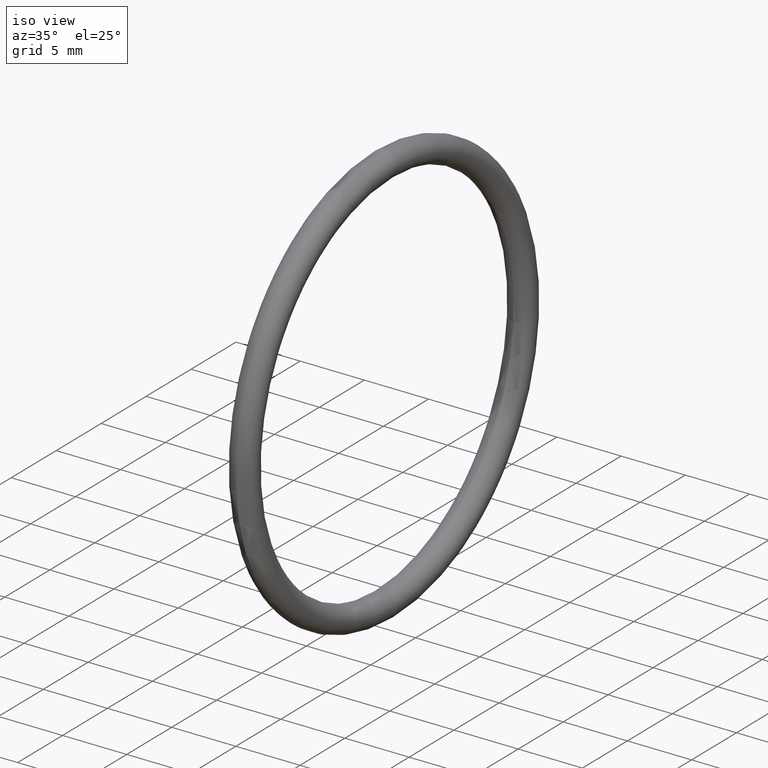
[diagram: clean part render]
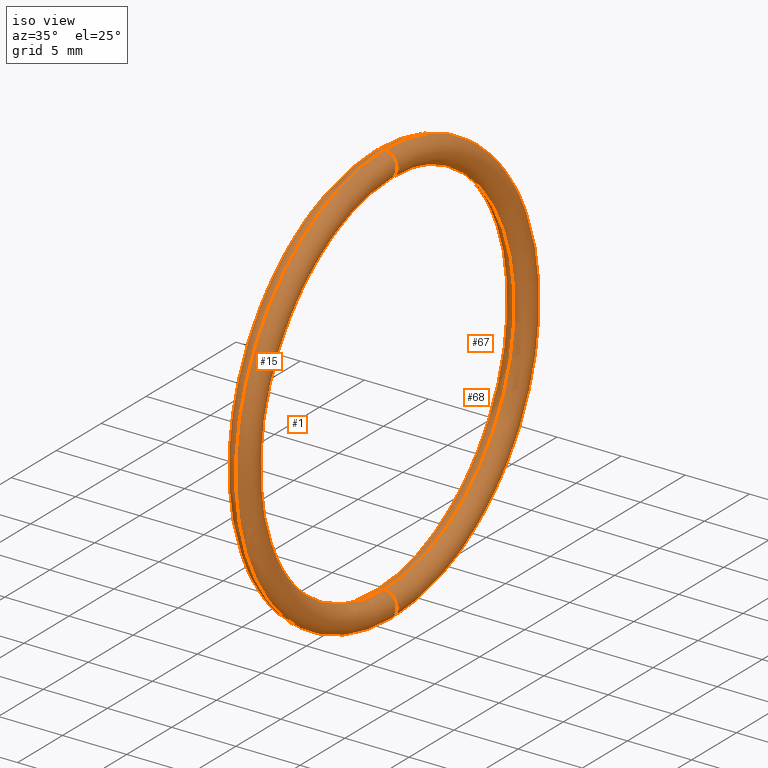
[diagram: same view with one multi-face feature highlighted, each face labeled with its STEP entity id]
A machine part, iso view. The highlighted faces form ONE feature: a constant-radius fillet chain: 4 tangent blend faces with common blend radius 1.016 mm. The faces share edges in the B-rep.
Their STEP definitions:
[1] entity #67 (Torus):
#3 = EDGE_CURVE ( 'NONE', #14, #8, #20, .T. ) ;
#8 = VERTEX_POINT ( 'NONE', #84 ) ;
#10 = VERTEX_POINT ( 'NONE', #96 ) ;
#14 = VERTEX_POINT ( 'NONE', #86 ) ;
#16 = AXIS2_PLACEMENT_3D ( 'NONE', #21, #22, #19 ) ;
#17 = DIRECTION ( 'NONE',  ( -1.000000000000000000, -0.0000000000000000000, -0.0000000000000000000 ) ) ;
#18 = CIRCLE ( 'NONE', #29, 0.6499999999999999100 ) ;
#19 = DIRECTION ( 'NONE',  ( 0.0000000000000000000, -1.224646799147354900E-016, 1.000000000000000000 ) ) ;
#20 = CIRCLE ( 'NONE', #16, 0.03999999999999998000 ) ;
#21 = CARTESIAN_POINT ( 'NONE',  ( 0.1000000000000000700, 7.470345474798854000E-017, -0.6099999999999998800 ) ) ;
#22 = DIRECTION ( 'NONE',  ( -0.0000000000000000000, 1.000000000000000000, 1.224646799147353200E-016 ) ) ;
#27 = CARTESIAN_POINT ( 'NONE',  ( 0.1000000000000000700, 0.0000000000000000000, 0.0000000000000000000 ) ) ;
#29 = AXIS2_PLACEMENT_3D ( 'NONE', #27, #17, #32 ) ;
#31 = DIRECTION ( 'NONE',  ( -1.000000000000000000, -0.0000000000000000000, -0.0000000000000000000 ) ) ;
#32 = DIRECTION ( 'NONE',  ( 0.0000000000000000000, 0.0000000000000000000, 1.000000000000000000 ) ) ;
#33 = DIRECTION ( 'NONE',  ( 0.0000000000000000000, 0.0000000000000000000, 1.000000000000000000 ) ) ;
#34 = DIRECTION ( 'NONE',  ( -1.000000000000000000, -0.0000000000000000000, -0.0000000000000000000 ) ) ;
#49 = DIRECTION ( 'NONE',  ( 0.0000000000000000000, 0.0000000000000000000, 1.000000000000000000 ) ) ;
#52 = VERTEX_POINT ( 'NONE', #91 ) ;
#54 = EDGE_CURVE ( 'NONE', #10, #8, #18, .T. ) ;
#56 = EDGE_LOOP ( 'NONE', ( #64, #58, #66, #60 ) ) ;
#58 = ORIENTED_EDGE ( 'NONE', *, *, #59, .F. ) ;
#59 = EDGE_CURVE ( 'NONE', #52, #10, #115, .T. ) ;
#60 = ORIENTED_EDGE ( 'NONE', *, *, #3, .T. ) ;
#63 = EDGE_CURVE ( 'NONE', #52, #14, #110, .T. ) ;
#64 = ORIENTED_EDGE ( 'NONE', *, *, #54, .F. ) ;
#66 = ORIENTED_EDGE ( 'NONE', *, *, #63, .T. ) ;
#67 = ADVANCED_FACE ( 'NONE', ( #118 ), #117, .T. ) ;
#84 = CARTESIAN_POINT ( 'NONE',  ( 0.1000000000000000700, 7.960204194457794200E-017, -0.6499999999999999100 ) ) ;
#86 = CARTESIAN_POINT ( 'NONE',  ( 0.1000000000000000700, 6.980486755139912600E-017, -0.5699999999999999500 ) ) ;
#91 = CARTESIAN_POINT ( 'NONE',  ( 0.1000000000000000700, 0.0000000000000000000, 0.5699999999999999500 ) ) ;
#96 = CARTESIAN_POINT ( 'NONE',  ( 0.1000000000000000700, 0.0000000000000000000, 0.6499999999999999100 ) ) ;
#108 = CARTESIAN_POINT ( 'NONE',  ( 0.1000000000000000700, 0.0000000000000000000, 0.0000000000000000000 ) ) ;
#109 = AXIS2_PLACEMENT_3D ( 'NONE', #108, #31, #33 ) ;
#110 = CIRCLE ( 'NONE', #109, 0.5699999999999999500 ) ;
#111 = DIRECTION ( 'NONE',  ( 0.0000000000000000000, 0.0000000000000000000, -1.000000000000000000 ) ) ;
#112 = DIRECTION ( 'NONE',  ( 0.0000000000000000000, -1.000000000000000000, 0.0000000000000000000 ) ) ;
#113 = CARTESIAN_POINT ( 'NONE',  ( 0.1000000000000000700, 0.0000000000000000000, 0.6099999999999998800 ) ) ;
#114 = AXIS2_PLACEMENT_3D ( 'NONE', #113, #112, #111 ) ;
#115 = CIRCLE ( 'NONE', #114, 0.03999999999999998000 ) ;
#116 = AXIS2_PLACEMENT_3D ( 'NONE', #124, #34, #49 ) ;
#117 = TOROIDAL_SURFACE ( 'NONE', #116, 0.6099999999999998800, 0.04000000000000000100 ) ;
#118 = FACE_OUTER_BOUND ( 'NONE', #56, .T. ) ;
#124 = CARTESIAN_POINT ( 'NONE',  ( 0.1000000000000000700, 0.0000000000000000000, 0.0000000000000000000 ) ) ;
[2] entity #1 (Torus):
#1 = ADVANCED_FACE ( 'NONE', ( #78 ), #83, .T. ) ;
#2 = ORIENTED_EDGE ( 'NONE', *, *, #59, .T. ) ;
#3 = EDGE_CURVE ( 'NONE', #14, #8, #20, .T. ) ;
#4 = ORIENTED_EDGE ( 'NONE', *, *, #65, .T. ) ;
#5 = ORIENTED_EDGE ( 'NONE', *, *, #9, .F. ) ;
#8 = VERTEX_POINT ( 'NONE', #84 ) ;
#9 = EDGE_CURVE ( 'NONE', #8, #10, #28, .T. ) ;
#10 = VERTEX_POINT ( 'NONE', #96 ) ;
#14 = VERTEX_POINT ( 'NONE', #86 ) ;
#16 = AXIS2_PLACEMENT_3D ( 'NONE', #21, #22, #19 ) ;
#19 = DIRECTION ( 'NONE',  ( 0.0000000000000000000, -1.224646799147354900E-016, 1.000000000000000000 ) ) ;
#20 = CIRCLE ( 'NONE', #16, 0.03999999999999998000 ) ;
#21 = CARTESIAN_POINT ( 'NONE',  ( 0.1000000000000000700, 7.470345474798854000E-017, -0.6099999999999998800 ) ) ;
#22 = DIRECTION ( 'NONE',  ( -0.0000000000000000000, 1.000000000000000000, 1.224646799147353200E-016 ) ) ;
#24 = AXIS2_PLACEMENT_3D ( 'NONE', #26, #25, #30 ) ;
#25 = DIRECTION ( 'NONE',  ( -1.000000000000000000, -0.0000000000000000000, -0.0000000000000000000 ) ) ;
#26 = CARTESIAN_POINT ( 'NONE',  ( 0.1000000000000000700, 0.0000000000000000000, 0.0000000000000000000 ) ) ;
#28 = CIRCLE ( 'NONE', #24, 0.6499999999999999100 ) ;
#30 = DIRECTION ( 'NONE',  ( 0.0000000000000000000, 0.0000000000000000000, 1.000000000000000000 ) ) ;
#52 = VERTEX_POINT ( 'NONE', #91 ) ;
#59 = EDGE_CURVE ( 'NONE', #52, #10, #115, .T. ) ;
#61 = EDGE_LOOP ( 'NONE', ( #5, #72, #4, #2 ) ) ;
#65 = EDGE_CURVE ( 'NONE', #14, #52, #123, .T. ) ;
#72 = ORIENTED_EDGE ( 'NONE', *, *, #3, .F. ) ;
#78 = FACE_OUTER_BOUND ( 'NONE', #61, .T. ) ;
#79 = DIRECTION ( 'NONE',  ( -1.000000000000000000, -0.0000000000000000000, -0.0000000000000000000 ) ) ;
#80 = DIRECTION ( 'NONE',  ( 0.0000000000000000000, 0.0000000000000000000, 1.000000000000000000 ) ) ;
#81 = CARTESIAN_POINT ( 'NONE',  ( 0.1000000000000000700, 0.0000000000000000000, 0.0000000000000000000 ) ) ;
#82 = AXIS2_PLACEMENT_3D ( 'NONE', #81, #79, #80 ) ;
#83 = TOROIDAL_SURFACE ( 'NONE', #82, 0.6099999999999998800, 0.04000000000000000100 ) ;
#84 = CARTESIAN_POINT ( 'NONE',  ( 0.1000000000000000700, 7.960204194457794200E-017, -0.6499999999999999100 ) ) ;
#86 = CARTESIAN_POINT ( 'NONE',  ( 0.1000000000000000700, 6.980486755139912600E-017, -0.5699999999999999500 ) ) ;
#91 = CARTESIAN_POINT ( 'NONE',  ( 0.1000000000000000700, 0.0000000000000000000, 0.5699999999999999500 ) ) ;
#96 = CARTESIAN_POINT ( 'NONE',  ( 0.1000000000000000700, 0.0000000000000000000, 0.6499999999999999100 ) ) ;
#111 = DIRECTION ( 'NONE',  ( 0.0000000000000000000, 0.0000000000000000000, -1.000000000000000000 ) ) ;
#112 = DIRECTION ( 'NONE',  ( 0.0000000000000000000, -1.000000000000000000, 0.0000000000000000000 ) ) ;
#113 = CARTESIAN_POINT ( 'NONE',  ( 0.1000000000000000700, 0.0000000000000000000, 0.6099999999999998800 ) ) ;
#114 = AXIS2_PLACEMENT_3D ( 'NONE', #113, #112, #111 ) ;
#115 = CIRCLE ( 'NONE', #114, 0.03999999999999998000 ) ;
#119 = DIRECTION ( 'NONE',  ( 0.0000000000000000000, 0.0000000000000000000, 1.000000000000000000 ) ) ;
#120 = DIRECTION ( 'NONE',  ( -1.000000000000000000, -0.0000000000000000000, -0.0000000000000000000 ) ) ;
#121 = CARTESIAN_POINT ( 'NONE',  ( 0.1000000000000000700, 0.0000000000000000000, 0.0000000000000000000 ) ) ;
#122 = AXIS2_PLACEMENT_3D ( 'NONE', #121, #120, #119 ) ;
#123 = CIRCLE ( 'NONE', #122, 0.5699999999999999500 ) ;
[3] entity #15 (Torus):
#7 = ORIENTED_EDGE ( 'NONE', *, *, #9, .T. ) ;
#8 = VERTEX_POINT ( 'NONE', #84 ) ;
#9 = EDGE_CURVE ( 'NONE', #8, #10, #28, .T. ) ;
#10 = VERTEX_POINT ( 'NONE', #96 ) ;
#11 = EDGE_LOOP ( 'NONE', ( #13, #7, #51, #71 ) ) ;
#12 = EDGE_CURVE ( 'NONE', #8, #14, #88, .T. ) ;
#13 = ORIENTED_EDGE ( 'NONE', *, *, #12, .F. ) ;
#14 = VERTEX_POINT ( 'NONE', #86 ) ;
#15 = ADVANCED_FACE ( 'NONE', ( #85 ), #92, .T. ) ;
#24 = AXIS2_PLACEMENT_3D ( 'NONE', #26, #25, #30 ) ;
#25 = DIRECTION ( 'NONE',  ( -1.000000000000000000, -0.0000000000000000000, -0.0000000000000000000 ) ) ;
#26 = CARTESIAN_POINT ( 'NONE',  ( 0.1000000000000000700, 0.0000000000000000000, 0.0000000000000000000 ) ) ;
#28 = CIRCLE ( 'NONE', #24, 0.6499999999999999100 ) ;
#30 = DIRECTION ( 'NONE',  ( 0.0000000000000000000, 0.0000000000000000000, 1.000000000000000000 ) ) ;
#51 = ORIENTED_EDGE ( 'NONE', *, *, #53, .T. ) ;
#52 = VERTEX_POINT ( 'NONE', #91 ) ;
#53 = EDGE_CURVE ( 'NONE', #10, #52, #103, .T. ) ;
#65 = EDGE_CURVE ( 'NONE', #14, #52, #123, .T. ) ;
#71 = ORIENTED_EDGE ( 'NONE', *, *, #65, .F. ) ;
#84 = CARTESIAN_POINT ( 'NONE',  ( 0.1000000000000000700, 7.960204194457794200E-017, -0.6499999999999999100 ) ) ;
#85 = FACE_OUTER_BOUND ( 'NONE', #11, .T. ) ;
#86 = CARTESIAN_POINT ( 'NONE',  ( 0.1000000000000000700, 6.980486755139912600E-017, -0.5699999999999999500 ) ) ;
#87 = AXIS2_PLACEMENT_3D ( 'NONE', #89, #94, #93 ) ;
#88 = CIRCLE ( 'NONE', #87, 0.03999999999999998000 ) ;
#89 = CARTESIAN_POINT ( 'NONE',  ( 0.1000000000000000700, 7.470345474798854000E-017, -0.6099999999999998800 ) ) ;
#90 = AXIS2_PLACEMENT_3D ( 'NONE', #95, #99, #98 ) ;
#91 = CARTESIAN_POINT ( 'NONE',  ( 0.1000000000000000700, 0.0000000000000000000, 0.5699999999999999500 ) ) ;
#92 = TOROIDAL_SURFACE ( 'NONE', #90, 0.6099999999999998800, 0.04000000000000000100 ) ;
#93 = DIRECTION ( 'NONE',  ( 0.0000000000000000000, -1.224646799147354900E-016, 1.000000000000000000 ) ) ;
#94 = DIRECTION ( 'NONE',  ( -0.0000000000000000000, 1.000000000000000000, 1.224646799147353200E-016 ) ) ;
#95 = CARTESIAN_POINT ( 'NONE',  ( 0.1000000000000000700, 0.0000000000000000000, 0.0000000000000000000 ) ) ;
#96 = CARTESIAN_POINT ( 'NONE',  ( 0.1000000000000000700, 0.0000000000000000000, 0.6499999999999999100 ) ) ;
#97 = CARTESIAN_POINT ( 'NONE',  ( 0.1000000000000000700, 0.0000000000000000000, 0.6099999999999998800 ) ) ;
#98 = DIRECTION ( 'NONE',  ( 0.0000000000000000000, 0.0000000000000000000, 1.000000000000000000 ) ) ;
#99 = DIRECTION ( 'NONE',  ( -1.000000000000000000, -0.0000000000000000000, -0.0000000000000000000 ) ) ;
#100 = DIRECTION ( 'NONE',  ( 0.0000000000000000000, 0.0000000000000000000, -1.000000000000000000 ) ) ;
#101 = DIRECTION ( 'NONE',  ( 0.0000000000000000000, -1.000000000000000000, 0.0000000000000000000 ) ) ;
#102 = AXIS2_PLACEMENT_3D ( 'NONE', #97, #101, #100 ) ;
#103 = CIRCLE ( 'NONE', #102, 0.03999999999999998000 ) ;
#119 = DIRECTION ( 'NONE',  ( 0.0000000000000000000, 0.0000000000000000000, 1.000000000000000000 ) ) ;
#120 = DIRECTION ( 'NONE',  ( -1.000000000000000000, -0.0000000000000000000, -0.0000000000000000000 ) ) ;
#121 = CARTESIAN_POINT ( 'NONE',  ( 0.1000000000000000700, 0.0000000000000000000, 0.0000000000000000000 ) ) ;
#122 = AXIS2_PLACEMENT_3D ( 'NONE', #121, #120, #119 ) ;
#123 = CIRCLE ( 'NONE', #122, 0.5699999999999999500 ) ;
[4] entity #68 (Torus):
#8 = VERTEX_POINT ( 'NONE', #84 ) ;
#10 = VERTEX_POINT ( 'NONE', #96 ) ;
#12 = EDGE_CURVE ( 'NONE', #8, #14, #88, .T. ) ;
#14 = VERTEX_POINT ( 'NONE', #86 ) ;
#17 = DIRECTION ( 'NONE',  ( -1.000000000000000000, -0.0000000000000000000, -0.0000000000000000000 ) ) ;
#18 = CIRCLE ( 'NONE', #29, 0.6499999999999999100 ) ;
#27 = CARTESIAN_POINT ( 'NONE',  ( 0.1000000000000000700, 0.0000000000000000000, 0.0000000000000000000 ) ) ;
#29 = AXIS2_PLACEMENT_3D ( 'NONE', #27, #17, #32 ) ;
#31 = DIRECTION ( 'NONE',  ( -1.000000000000000000, -0.0000000000000000000, -0.0000000000000000000 ) ) ;
#32 = DIRECTION ( 'NONE',  ( 0.0000000000000000000, 0.0000000000000000000, 1.000000000000000000 ) ) ;
#33 = DIRECTION ( 'NONE',  ( 0.0000000000000000000, 0.0000000000000000000, 1.000000000000000000 ) ) ;
#42 = DIRECTION ( 'NONE',  ( 0.0000000000000000000, 0.0000000000000000000, 1.000000000000000000 ) ) ;
#52 = VERTEX_POINT ( 'NONE', #91 ) ;
#53 = EDGE_CURVE ( 'NONE', #10, #52, #103, .T. ) ;
#54 = EDGE_CURVE ( 'NONE', #10, #8, #18, .T. ) ;
#55 = ORIENTED_EDGE ( 'NONE', *, *, #54, .T. ) ;
#57 = ORIENTED_EDGE ( 'NONE', *, *, #12, .T. ) ;
#62 = ORIENTED_EDGE ( 'NONE', *, *, #63, .F. ) ;
#63 = EDGE_CURVE ( 'NONE', #52, #14, #110, .T. ) ;
#68 = ADVANCED_FACE ( 'NONE', ( #125 ), #107, .T. ) ;
#69 = EDGE_LOOP ( 'NONE', ( #70, #55, #57, #62 ) ) ;
#70 = ORIENTED_EDGE ( 'NONE', *, *, #53, .F. ) ;
#84 = CARTESIAN_POINT ( 'NONE',  ( 0.1000000000000000700, 7.960204194457794200E-017, -0.6499999999999999100 ) ) ;
#86 = CARTESIAN_POINT ( 'NONE',  ( 0.1000000000000000700, 6.980486755139912600E-017, -0.5699999999999999500 ) ) ;
#87 = AXIS2_PLACEMENT_3D ( 'NONE', #89, #94, #93 ) ;
#88 = CIRCLE ( 'NONE', #87, 0.03999999999999998000 ) ;
#89 = CARTESIAN_POINT ( 'NONE',  ( 0.1000000000000000700, 7.470345474798854000E-017, -0.6099999999999998800 ) ) ;
#91 = CARTESIAN_POINT ( 'NONE',  ( 0.1000000000000000700, 0.0000000000000000000, 0.5699999999999999500 ) ) ;
#93 = DIRECTION ( 'NONE',  ( 0.0000000000000000000, -1.224646799147354900E-016, 1.000000000000000000 ) ) ;
#94 = DIRECTION ( 'NONE',  ( -0.0000000000000000000, 1.000000000000000000, 1.224646799147353200E-016 ) ) ;
#96 = CARTESIAN_POINT ( 'NONE',  ( 0.1000000000000000700, 0.0000000000000000000, 0.6499999999999999100 ) ) ;
#97 = CARTESIAN_POINT ( 'NONE',  ( 0.1000000000000000700, 0.0000000000000000000, 0.6099999999999998800 ) ) ;
#100 = DIRECTION ( 'NONE',  ( 0.0000000000000000000, 0.0000000000000000000, -1.000000000000000000 ) ) ;
#101 = DIRECTION ( 'NONE',  ( 0.0000000000000000000, -1.000000000000000000, 0.0000000000000000000 ) ) ;
#102 = AXIS2_PLACEMENT_3D ( 'NONE', #97, #101, #100 ) ;
#103 = CIRCLE ( 'NONE', #102, 0.03999999999999998000 ) ;
#104 = CARTESIAN_POINT ( 'NONE',  ( 0.1000000000000000700, 0.0000000000000000000, 0.0000000000000000000 ) ) ;
#105 = AXIS2_PLACEMENT_3D ( 'NONE', #104, #106, #42 ) ;
#106 = DIRECTION ( 'NONE',  ( -1.000000000000000000, -0.0000000000000000000, -0.0000000000000000000 ) ) ;
#107 = TOROIDAL_SURFACE ( 'NONE', #105, 0.6099999999999998800, 0.04000000000000000100 ) ;
#108 = CARTESIAN_POINT ( 'NONE',  ( 0.1000000000000000700, 0.0000000000000000000, 0.0000000000000000000 ) ) ;
#109 = AXIS2_PLACEMENT_3D ( 'NONE', #108, #31, #33 ) ;
#110 = CIRCLE ( 'NONE', #109, 0.5699999999999999500 ) ;
#125 = FACE_OUTER_BOUND ( 'NONE', #69, .T. ) ;